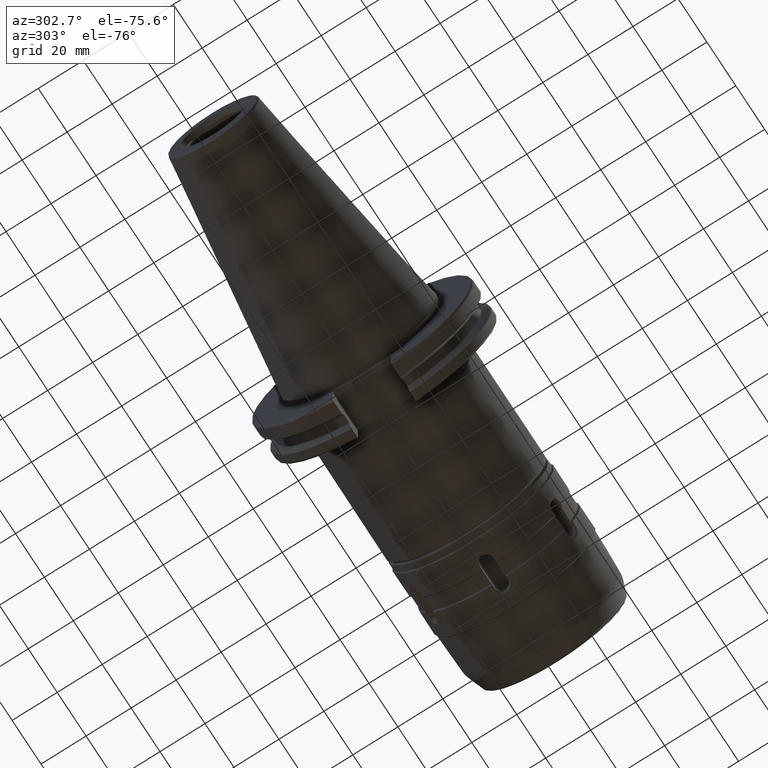
[diagram: clean part render]
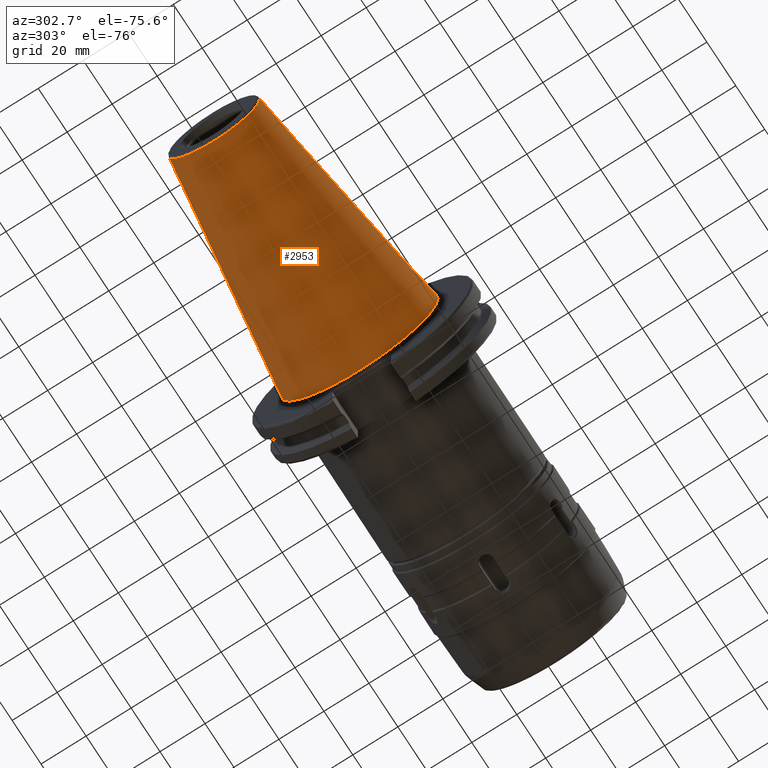
[diagram: same view with one face highlighted and labeled with its STEP entity id]
A machine part, auxiliary view. The second image highlights one B-rep face of the part: STEP entity #2953.
In plain terms, the highlighted conical surface has half-angle 8.297 deg.
Its self-contained STEP definition (entity closure, byte-faithful):
#195=CONICAL_SURFACE('',#3247,27.5166666666666,0.14481249823894);
#273=LINE('',#4726,#499);
#499=VECTOR('',#3689,27.5166666666666);
#711=FACE_OUTER_BOUND('',#896,.T.);
#896=EDGE_LOOP('',(#2156,#2157,#2158,#2159,#2160));
#1084=CIRCLE('',#3241,20.233121911427);
#1085=CIRCLE('',#3242,20.233121911427);
#1089=CIRCLE('',#3248,34.925);
#1316=VERTEX_POINT('',#4713);
#1317=VERTEX_POINT('',#4714);
#1320=VERTEX_POINT('',#4724);
#1636=EDGE_CURVE('',#1316,#1317,#1084,.T.);
#1637=EDGE_CURVE('',#1317,#1316,#1085,.T.);
#1641=EDGE_CURVE('',#1320,#1320,#1089,.T.);
#1642=EDGE_CURVE('',#1320,#1317,#273,.T.);
#2156=ORIENTED_EDGE('',*,*,#1641,.F.);
#2157=ORIENTED_EDGE('',*,*,#1642,.T.);
#2158=ORIENTED_EDGE('',*,*,#1636,.F.);
#2159=ORIENTED_EDGE('',*,*,#1637,.F.);
#2160=ORIENTED_EDGE('',*,*,#1642,.F.);
#2953=ADVANCED_FACE('',(#711),#195,.T.);
#3241=AXIS2_PLACEMENT_3D('',#4715,#3673,#3674);
#3242=AXIS2_PLACEMENT_3D('',#4716,#3675,#3676);
#3247=AXIS2_PLACEMENT_3D('',#4723,#3685,#3686);
#3248=AXIS2_PLACEMENT_3D('',#4725,#3687,#3688);
#3673=DIRECTION('center_axis',(-1.,0.,0.));
#3674=DIRECTION('ref_axis',(0.,-1.,3.06161699786838E-17));
#3675=DIRECTION('center_axis',(-1.,0.,0.));
#3676=DIRECTION('ref_axis',(0.,-1.,3.06161699786838E-17));
#3685=DIRECTION('center_axis',(1.,0.,0.));
#3686=DIRECTION('ref_axis',(0.,1.,0.));
#3687=DIRECTION('center_axis',(1.,0.,0.));
#3688=DIRECTION('ref_axis',(0.,0.,-1.));
#3689=DIRECTION('',(-0.989532981063281,0.144306893071729,1.76724974695192E-17));
#4713=CARTESIAN_POINT('',(-100.744306893072,-2.47784279855872E-15,20.233121911427));
#4714=CARTESIAN_POINT('',(-100.744306893072,-20.233121911427,-2.47784279855872E-15));
#4715=CARTESIAN_POINT('Origin',(-100.744306893072,0.,-3.09730349819841E-15));
#4716=CARTESIAN_POINT('Origin',(-100.744306893072,0.,-3.09730349819841E-15));
#4723=CARTESIAN_POINT('Origin',(-50.8,0.,0.));
#4724=CARTESIAN_POINT('',(-8.88178419700125E-15,-34.925,-4.27707894602213E-15));
#4725=CARTESIAN_POINT('Origin',(0.,0.,0.));
#4726=CARTESIAN_POINT('',(-50.8,-27.5166666666666,-3.3698197756538E-15));